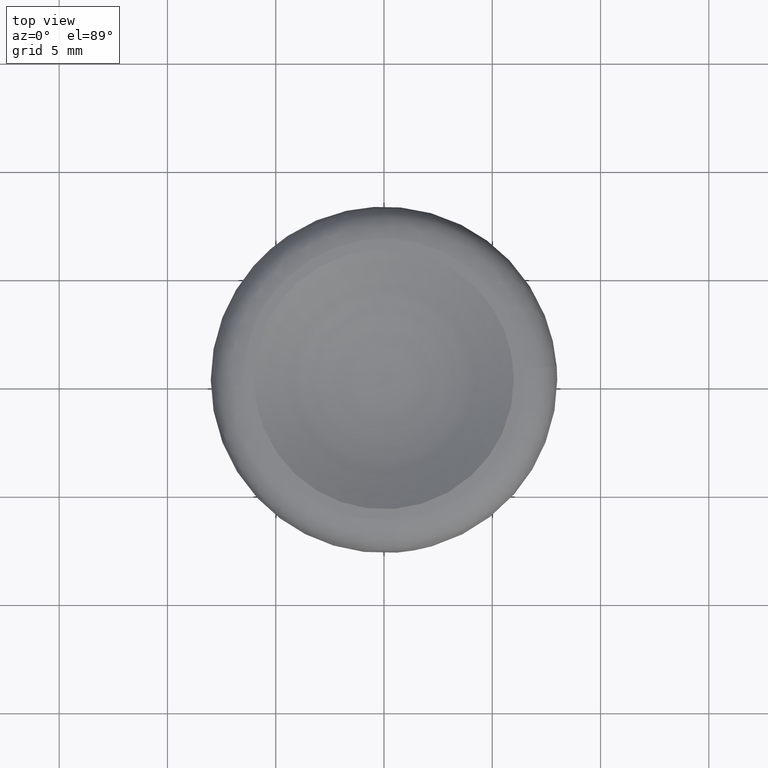
[diagram: clean part render]
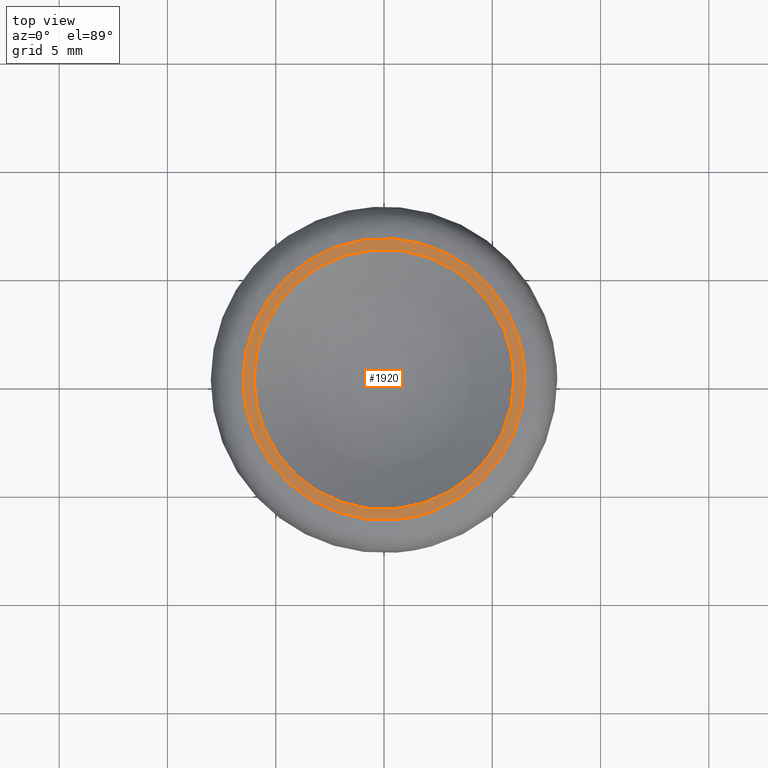
[diagram: same view with one face highlighted and labeled with its STEP entity id]
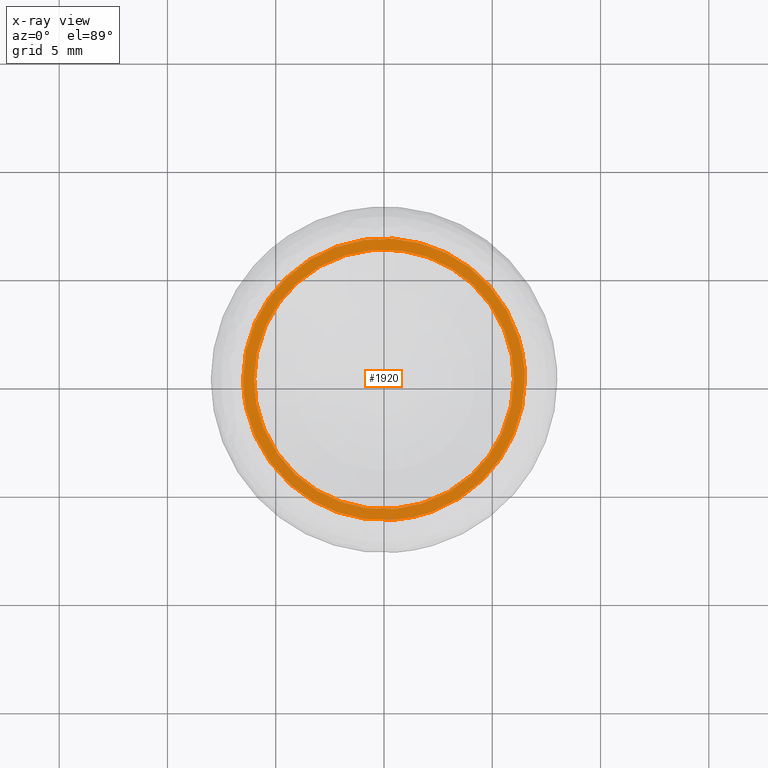
[diagram: x-ray of the same camera — body ghosted, the highlighted face saturated]
A machine part, top view. The second image highlights one B-rep face of the part: STEP entity #1920.
The next image is the same camera in x-ray: the body ghosted, the highlighted face saturated — about 0% of this face is hidden behind the body in this view.
In plain terms, the highlighted face is a freeform B-spline surface patch.
Its self-contained STEP definition (entity closure, byte-faithful):
#1658=CARTESIAN_POINT('',(0.489872814608703,-6.484823477230933,9.499999999999901));
#1659=VERTEX_POINT('',#1658);
#1673=CARTESIAN_POINT('',(-6.503300000000000,0.0,9.499999999999901));
#1674=VERTEX_POINT('',#1673);
#1675=CARTESIAN_POINT('',(0.489872814608703,-6.484823477230933,9.499999999999901));
#1676=CARTESIAN_POINT('',(0.245284846682335,-6.503299999999999,9.499999999999901));
#1677=CARTESIAN_POINT('',(0.0,-6.503300000000000,9.499999999999901));
#1678=CARTESIAN_POINT('',(-6.503300000000000,-6.503300000000000,9.499999999999902));
#1679=CARTESIAN_POINT('',(-6.503300000000000,0.0,9.499999999999901));
#1687=(BOUNDED_CURVE()B_SPLINE_CURVE(2,(#1675,#1676,#1677,#1678,#1679),.UNSPECIFIED.,.F.,.U.)B_SPLINE_CURVE_WITH_KNOTS((3,2,3),(0.736870159255462,0.750000000000000,1.0),.UNSPECIFIED.)CURVE()GEOMETRIC_REPRESENTATION_ITEM()RATIONAL_B_SPLINE_CURVE((0.970850634512779,0.984617434727297,1.0,0.707106781186547,1.0))REPRESENTATION_ITEM(''));
#1688=EDGE_CURVE('',#1659,#1674,#1687,.T.);
#1690=CARTESIAN_POINT('',(6.484823477214378,0.489872814605042,9.499999999999901));
#1691=VERTEX_POINT('',#1690);
#1692=CARTESIAN_POINT('',(-6.503300000000000,0.0,9.499999999999901));
#1693=CARTESIAN_POINT('',(-6.503300000000000,6.503300000000000,9.499999999999902));
#1694=CARTESIAN_POINT('',(0.0,6.503300000000000,9.499999999999901));
#1695=CARTESIAN_POINT('',(6.030560609548873,6.503300000000000,9.499999999999901));
#1696=CARTESIAN_POINT('',(6.484823477214378,0.489872814605042,9.499999999999901));
#1704=(BOUNDED_CURVE()B_SPLINE_CURVE(2,(#1692,#1693,#1694,#1695,#1696),.UNSPECIFIED.,.F.,.U.)B_SPLINE_CURVE_WITH_KNOTS((3,2,3),(0.0,0.250000000000000,0.486870159255589),.UNSPECIFIED.)CURVE()GEOMETRIC_REPRESENTATION_ITEM()RATIONAL_B_SPLINE_CURVE((1.0,0.707106781186547,1.0,0.722489346459102,0.970850634513045))REPRESENTATION_ITEM(''));
#1705=EDGE_CURVE('',#1674,#1691,#1704,.T.);
#1746=CARTESIAN_POINT('',(6.503300000000000,0.0,9.499999999999901));
#1747=VERTEX_POINT('',#1746);
#1748=CARTESIAN_POINT('',(6.484823477214378,0.489872814605042,9.499999999999901));
#1749=CARTESIAN_POINT('',(6.503300000000001,0.245284846679927,9.499999999999901));
#1750=CARTESIAN_POINT('',(6.503300000000000,0.0,9.499999999999901));
#1758=(BOUNDED_CURVE()B_SPLINE_CURVE(2,(#1748,#1749,#1750),.UNSPECIFIED.,.F.,.U.)B_SPLINE_CURVE_WITH_KNOTS((3,3),(0.486870159255589,0.500000000000000),.UNSPECIFIED.)CURVE()GEOMETRIC_REPRESENTATION_ITEM()RATIONAL_B_SPLINE_CURVE((0.970850634513045,0.984617434727446,1.0))REPRESENTATION_ITEM(''));
#1759=EDGE_CURVE('',#1691,#1747,#1758,.T.);
#1761=CARTESIAN_POINT('',(6.503300000000000,0.0,9.499999999999901));
#1762=CARTESIAN_POINT('',(6.503300000000001,-6.030560609544404,9.499999999999901));
#1763=CARTESIAN_POINT('',(0.489872814608703,-6.484823477230933,9.499999999999901));
#1771=(BOUNDED_CURVE()B_SPLINE_CURVE(2,(#1761,#1762,#1763),.UNSPECIFIED.,.F.,.U.)B_SPLINE_CURVE_WITH_KNOTS((3,3),(0.500000000000000,0.736870159255462),.UNSPECIFIED.)CURVE()GEOMETRIC_REPRESENTATION_ITEM()RATIONAL_B_SPLINE_CURVE((1.0,0.722489346459250,0.970850634512779))REPRESENTATION_ITEM(''));
#1772=EDGE_CURVE('',#1747,#1659,#1771,.T.);
#1802=CARTESIAN_POINT('',(6.0,0.0,9.499999999999901));
#1803=VERTEX_POINT('',#1802);
#1804=CARTESIAN_POINT('',(-6.0,0.0,9.499999999999901));
#1805=VERTEX_POINT('',#1804);
#1806=CARTESIAN_POINT('',(6.0,0.0,9.499999999999901));
#1807=CARTESIAN_POINT('',(6.0,-6.0,9.499999999999901));
#1808=CARTESIAN_POINT('',(0.0,-6.0,9.499999999999901));
#1809=CARTESIAN_POINT('',(-6.0,-6.0,9.499999999999901));
#1810=CARTESIAN_POINT('',(-6.0,0.0,9.499999999999901));
#1818=(BOUNDED_CURVE()B_SPLINE_CURVE(2,(#1806,#1807,#1808,#1809,#1810),.UNSPECIFIED.,.F.,.U.)B_SPLINE_CURVE_WITH_KNOTS((3,2,3),(0.500000000000000,0.750000000000000,1.0),.UNSPECIFIED.)CURVE()GEOMETRIC_REPRESENTATION_ITEM()RATIONAL_B_SPLINE_CURVE((1.0,0.707106781186548,1.0,0.707106781186548,1.0))REPRESENTATION_ITEM(''));
#1819=EDGE_CURVE('',#1803,#1805,#1818,.T.);
#1821=CARTESIAN_POINT('',(-6.0,0.0,9.499999999999901));
#1822=CARTESIAN_POINT('',(-6.0,6.0,9.499999999999901));
#1823=CARTESIAN_POINT('',(0.0,6.0,9.499999999999901));
#1824=CARTESIAN_POINT('',(6.0,6.0,9.499999999999901));
#1825=CARTESIAN_POINT('',(6.0,0.0,9.499999999999901));
#1833=(BOUNDED_CURVE()B_SPLINE_CURVE(2,(#1821,#1822,#1823,#1824,#1825),.UNSPECIFIED.,.F.,.U.)B_SPLINE_CURVE_WITH_KNOTS((3,2,3),(0.0,0.250000000000000,0.500000000000000),.UNSPECIFIED.)CURVE()GEOMETRIC_REPRESENTATION_ITEM()RATIONAL_B_SPLINE_CURVE((1.0,0.707106781186548,1.0,0.707106781186548,1.0))REPRESENTATION_ITEM(''));
#1834=EDGE_CURVE('',#1805,#1803,#1833,.T.);
#1905=CARTESIAN_POINT('',(7.152979888983994,-7.151310671529758,9.499999999999901));
#1906=CARTESIAN_POINT('',(-7.152980005272060,-7.151310671529758,9.499999999999901));
#1907=CARTESIAN_POINT('',(7.152979888983994,7.148059694538706,9.499999999999901));
#1908=CARTESIAN_POINT('',(-7.152980005272060,7.148059694538706,9.499999999999901));
#1909=B_SPLINE_SURFACE_WITH_KNOTS('',1,1,((#1905,#1907),(#1906,#1908)),.UNSPECIFIED.,.F.,.F.,.U.,(2,2),(2,2),(0.0,14.305959894256050),(0.0,14.299370366068461),.UNSPECIFIED.);
#1910=ORIENTED_EDGE('',*,*,#1688,.F.);
#1911=ORIENTED_EDGE('',*,*,#1772,.F.);
#1912=ORIENTED_EDGE('',*,*,#1759,.F.);
#1913=ORIENTED_EDGE('',*,*,#1705,.F.);
#1914=EDGE_LOOP('',(#1910,#1911,#1912,#1913));
#1915=FACE_OUTER_BOUND('',#1914,.T.);
#1916=ORIENTED_EDGE('',*,*,#1834,.T.);
#1917=ORIENTED_EDGE('',*,*,#1819,.T.);
#1918=EDGE_LOOP('',(#1916,#1917));
#1919=FACE_BOUND('',#1918,.T.);
#1920=ADVANCED_FACE('',(#1915,#1919),#1909,.F.);